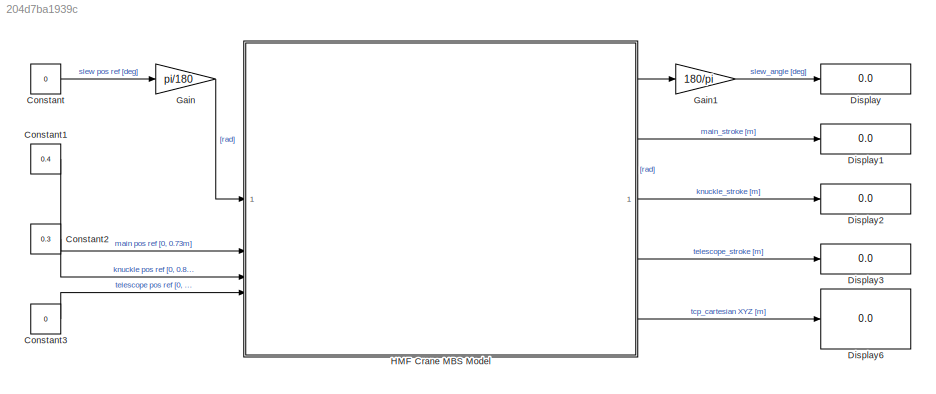
MODEL slx_204d7ba1939c
KIND model
CONFIG AbsTol = auto
CONFIG EnableMultiTasking = off
CONFIG FixedStep = 0.001
CONFIG MaxStep = 0.005
CONFIG MinStep = auto
CONFIG RelTol = 1e-3
CONFIG SampleTimeConstraint = Unconstrained
CONFIG SolverName = FixedStepAuto
CONFIG StartTime = 0.0
CONFIG StopTime = 1
BLOCK [Constant] Constant
  Value = 0
BLOCK [Constant] Constant1
  Value = 0.4
BLOCK [Constant] Constant2
  Value = 0.3
BLOCK [Constant] Constant3
  Value = 0
BLOCK [Display] Display
  Decimation = 1
BLOCK [Display] Display1
  Decimation = 1
BLOCK [Display] Display2
  Decimation = 1
BLOCK [Display] Display3
  Decimation = 1
BLOCK [Display] Display6
  Decimation = 1
BLOCK [Gain] Gain
  Gain = pi/180
BLOCK [Gain] Gain1
  Gain = 180/pi
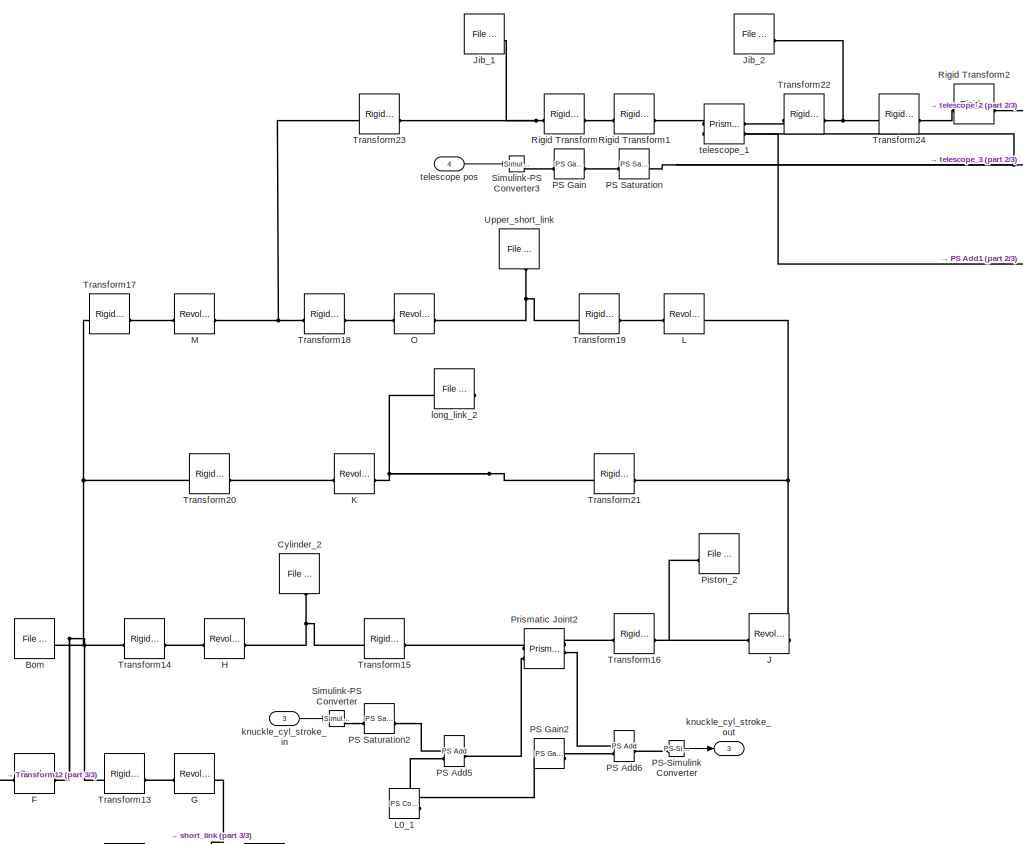
[diagram: HMF Crane MBS Model - part 1/3, central region]
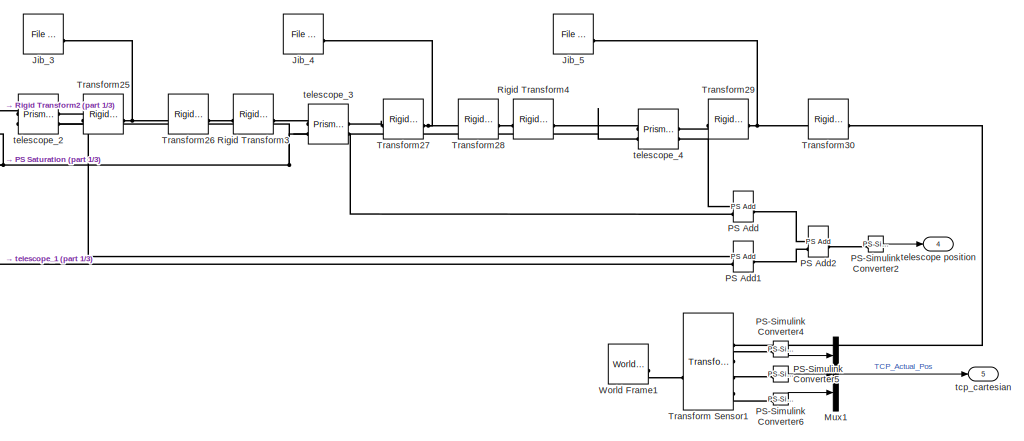
[diagram: HMF Crane MBS Model - part 2/3, top right region]
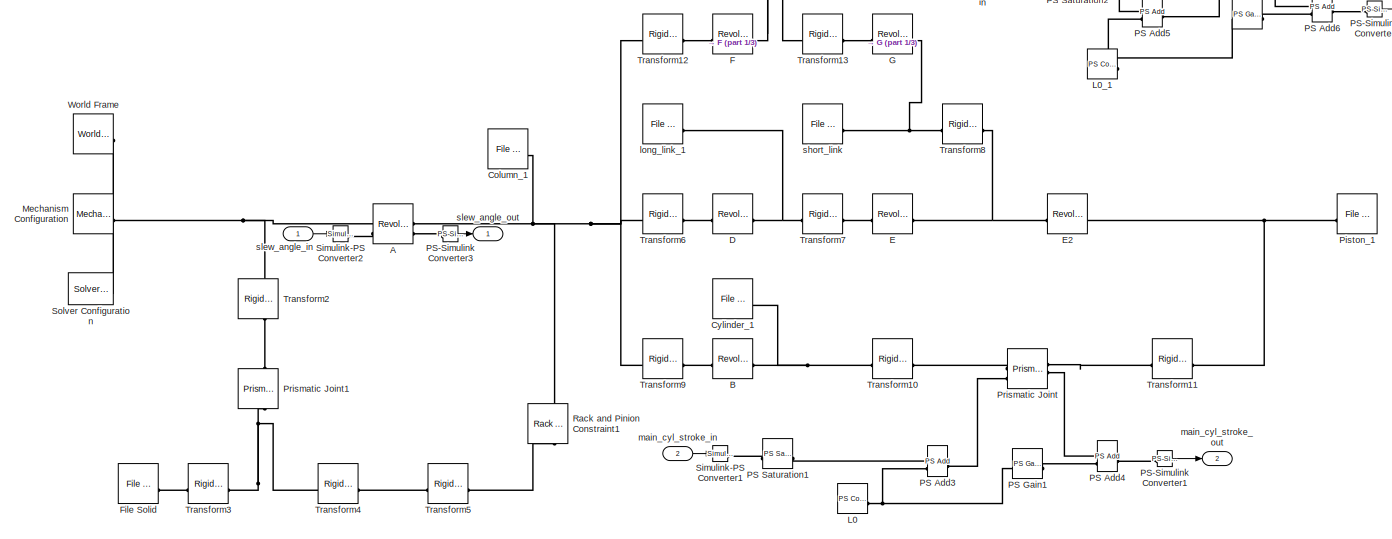
[diagram: HMF Crane MBS Model - part 3/3, bottom left region]
BLOCK [SubSystem] HMF Crane MBS Model
BLOCK [Reference] HMF Crane MBS Model/A  REF=sm_lib/Joints/Revolute Joint
  SourceBlock = sm_lib/Joints/Revolute Joint
  SourceType = Revolute Joint
BLOCK [Reference] HMF Crane MBS Model/B  REF=sm_lib/Joints/Revolute Joint
  SourceBlock = sm_lib/Joints/Revolute Joint
  SourceType = Revolute Joint
BLOCK [Reference] HMF Crane MBS Model/Bom  REF=sm_lib/Body Elements/File Solid
  SourceBlock = sm_lib/Body Elements/File Solid
  SourceType = File Solid
BLOCK [Reference] HMF Crane MBS Model/Column_1  REF=sm_lib/Body Elements/File Solid
  SourceBlock = sm_lib/Body Elements/File Solid
  SourceType = File Solid
BLOCK [Reference] HMF Crane MBS Model/Cylinder_1  REF=sm_lib/Body Elements/File Solid
  SourceBlock = sm_lib/Body Elements/File Solid
  SourceType = File Solid
BLOCK [Reference] HMF Crane MBS Model/Cylinder_2  REF=sm_lib/Body Elements/File Solid
  NameLocation = left
  SourceBlock = sm_lib/Body Elements/File Solid
  SourceType = File Solid
BLOCK [Reference] HMF Crane MBS Model/D  REF=sm_lib/Joints/Revolute Joint
  SourceBlock = sm_lib/Joints/Revolute Joint
  SourceType = Revolute Joint
BLOCK [Reference] HMF Crane MBS Model/E  REF=sm_lib/Joints/Revolute Joint
  SourceBlock = sm_lib/Joints/Revolute Joint
  SourceType = Revolute Joint
BLOCK [Reference] HMF Crane MBS Model/E2  REF=sm_lib/Joints/Revolute Joint
  SourceBlock = sm_lib/Joints/Revolute Joint
  SourceType = Revolute Joint
BLOCK [Reference] HMF Crane MBS Model/F  REF=sm_lib/Joints/Revolute Joint
  SourceBlock = sm_lib/Joints/Revolute Joint
  SourceType = Revolute Joint
BLOCK [Reference] HMF Crane MBS Model/File Solid  REF=sm_lib/Body Elements/File Solid
  SourceBlock = sm_lib/Body Elements/File Solid
  SourceType = File Solid
BLOCK [Reference] HMF Crane MBS Model/G  REF=sm_lib/Joints/Revolute Joint
  SourceBlock = sm_lib/Joints/Revolute Joint
  SourceType = Revolute Joint
BLOCK [Reference] HMF Crane MBS Model/H  REF=sm_lib/Joints/Revolute Joint
  SourceBlock = sm_lib/Joints/Revolute Joint
  SourceType = Revolute Joint
BLOCK [Reference] HMF Crane MBS Model/J  REF=sm_lib/Joints/Revolute Joint
  SourceBlock = sm_lib/Joints/Revolute Joint
  SourceType = Revolute Joint
BLOCK [Reference] HMF Crane MBS Model/Jib_1  REF=sm_lib/Body Elements/File Solid
  SourceBlock = sm_lib/Body Elements/File Solid
  SourceType = File Solid
BLOCK [Reference] HMF Crane MBS Model/Jib_2  REF=sm_lib/Body Elements/File Solid
  SourceBlock = sm_lib/Body Elements/File Solid
  SourceType = File Solid
BLOCK [Reference] HMF Crane MBS Model/Jib_3  REF=sm_lib/Body Elements/File Solid
  SourceBlock = sm_lib/Body Elements/File Solid
  SourceType = File Solid
BLOCK [Reference] HMF Crane MBS Model/Jib_4  REF=sm_lib/Body Elements/File Solid
  SourceBlock = sm_lib/Body Elements/File Solid
  SourceType = File Solid
BLOCK [Reference] HMF Crane MBS Model/Jib_5  REF=sm_lib/Body Elements/File Solid
  SourceBlock = sm_lib/Body Elements/File Solid
  SourceType = File Solid
BLOCK [Reference] HMF Crane MBS Model/K  REF=sm_lib/Joints/Revolute Joint
  SourceBlock = sm_lib/Joints/Revolute Joint
  SourceType = Revolute Joint
BLOCK [Reference] HMF Crane MBS Model/L  REF=sm_lib/Joints/Revolute Joint
  SourceBlock = sm_lib/Joints/Revolute Joint
  SourceType = Revolute Joint
BLOCK [Reference] HMF Crane MBS Model/L0  REF=fl_lib/Physical Signals/Sources/PS Constant
  SourceBlock = fl_lib/Physical Signals/Sources/PS Constant
  SourceType = PS Constant
BLOCK [Reference] HMF Crane MBS Model/L0_1  REF=fl_lib/Physical Signals/Sources/PS Constant
  SourceBlock = fl_lib/Physical Signals/Sources/PS Constant
  SourceType = PS Constant
BLOCK [Reference] HMF Crane MBS Model/M  REF=sm_lib/Joints/Revolute Joint
  SourceBlock = sm_lib/Joints/Revolute Joint
  SourceType = Revolute Joint
BLOCK [Reference] HMF Crane MBS Model/Mechanism Configuration  REF=sm_lib/Utilities/Mechanism
Configuration
  SourceBlock = sm_lib/Utilities/Mechanism\nConfiguration
  SourceType = Mechanism\nConfiguration
BLOCK [Mux] HMF Crane MBS Model/Mux1
  DisplayOption = bar
  Inputs = 3
BLOCK [Reference] HMF Crane MBS Model/O  REF=sm_lib/Joints/Revolute Joint
  SourceBlock = sm_lib/Joints/Revolute Joint
  SourceType = Revolute Joint
BLOCK [Reference] HMF Crane MBS Model/PS Add  REF=fl_lib/Physical Signals/Functions/PS Add
  SourceBlock = fl_lib/Physical Signals/Functions/PS Add
  SourceType = PS Add
BLOCK [Reference] HMF Crane MBS Model/PS Add1  REF=fl_lib/Physical Signals/Functions/PS Add
  SourceBlock = fl_lib/Physical Signals/Functions/PS Add
  SourceType = PS Add
BLOCK [Reference] HMF Crane MBS Model/PS Add2  REF=fl_lib/Physical Signals/Functions/PS Add
  SourceBlock = fl_lib/Physical Signals/Functions/PS Add
  SourceType = PS Add
BLOCK [Reference] HMF Crane MBS Model/PS Add3  REF=fl_lib/Physical Signals/Functions/PS Add
  SourceBlock = fl_lib/Physical Signals/Functions/PS Add
  SourceType = PS Add
BLOCK [Reference] HMF Crane MBS Model/PS Add4  REF=fl_lib/Physical Signals/Functions/PS Add
  SourceBlock = fl_lib/Physical Signals/Functions/PS Add
  SourceType = PS Add
BLOCK [Reference] HMF Crane MBS Model/PS Add5  REF=fl_lib/Physical Signals/Functions/PS Add
  SourceBlock = fl_lib/Physical Signals/Functions/PS Add
  SourceType = PS Add
BLOCK [Reference] HMF Crane MBS Model/PS Add6  REF=fl_lib/Physical Signals/Functions/PS Add
  SourceBlock = fl_lib/Physical Signals/Functions/PS Add
  SourceType = PS Add
BLOCK [Reference] HMF Crane MBS Model/PS Gain  REF=fl_lib/Physical Signals/Functions/PS Gain
  SourceBlock = fl_lib/Physical Signals/Functions/PS Gain
  SourceType = PS Gain
BLOCK [Reference] HMF Crane MBS Model/PS Gain1  REF=fl_lib/Physical Signals/Functions/PS Gain
  SourceBlock = fl_lib/Physical Signals/Functions/PS Gain
  SourceType = PS Gain
BLOCK [Reference] HMF Crane MBS Model/PS Gain2  REF=fl_lib/Physical Signals/Functions/PS Gain
  SourceBlock = fl_lib/Physical Signals/Functions/PS Gain
  SourceType = PS Gain
BLOCK [Reference] HMF Crane MBS Model/PS Saturation  REF=fl_lib/Physical Signals/Nonlinear Operators/PS Saturation
  SourceBlock = fl_lib/Physical Signals/Nonlinear Operators/PS Saturation
  SourceType = PS Saturation
BLOCK [Reference] HMF Crane MBS Model/PS Saturation1  REF=fl_lib/Physical Signals/Nonlinear Operators/PS Saturation
  SourceBlock = fl_lib/Physical Signals/Nonlinear Operators/PS Saturation
  SourceType = PS Saturation
BLOCK [Reference] HMF Crane MBS Model/PS Saturation2  REF=fl_lib/Physical Signals/Nonlinear Operators/PS Saturation
  SourceBlock = fl_lib/Physical Signals/Nonlinear Operators/PS Saturation
  SourceType = PS Saturation
BLOCK [Reference] HMF Crane MBS Model/PS-Simulink Converter  REF=nesl_utility/PS-Simulink
Converter
  SourceBlock = nesl_utility/PS-Simulink\nConverter
  SourceType = PS-Simulink\nConverter
BLOCK [Reference] HMF Crane MBS Model/PS-Simulink Converter1  REF=nesl_utility/PS-Simulink
Converter
  SourceBlock = nesl_utility/PS-Simulink\nConverter
  SourceType = PS-Simulink\nConverter
BLOCK [Reference] HMF Crane MBS Model/PS-Simulink Converter2  REF=nesl_utility/PS-Simulink
Converter
  SourceBlock = nesl_utility/PS-Simulink\nConverter
  SourceType = PS-Simulink\nConverter
BLOCK [Reference] HMF Crane MBS Model/PS-Simulink Converter3  REF=nesl_utility/PS-Simulink
Converter
  SourceBlock = nesl_utility/PS-Simulink\nConverter
  SourceType = PS-Simulink\nConverter
BLOCK [Reference] HMF Crane MBS Model/PS-Simulink Converter4  REF=nesl_utility/PS-Simulink
Converter
  SourceBlock = nesl_utility/PS-Simulink\nConverter
  SourceType = PS-Simulink\nConverter
BLOCK [Reference] HMF Crane MBS Model/PS-Simulink Converter5  REF=nesl_utility/PS-Simulink
Converter
  SourceBlock = nesl_utility/PS-Simulink\nConverter
  SourceType = PS-Simulink\nConverter
BLOCK [Reference] HMF Crane MBS Model/PS-Simulink Converter6  REF=nesl_utility/PS-Simulink
Converter
  SourceBlock = nesl_utility/PS-Simulink\nConverter
  SourceType = PS-Simulink\nConverter
BLOCK [Reference] HMF Crane MBS Model/Piston_1  REF=sm_lib/Body Elements/File Solid
  SourceBlock = sm_lib/Body Elements/File Solid
  SourceType = File Solid
BLOCK [Reference] HMF Crane MBS Model/Piston_2  REF=sm_lib/Body Elements/File Solid
  SourceBlock = sm_lib/Body Elements/File Solid
  SourceType = File Solid
BLOCK [Reference] HMF Crane MBS Model/Prismatic Joint  REF=sm_lib/Joints/Prismatic
Joint
  SourceBlock = sm_lib/Joints/Prismatic\nJoint
  SourceType = Prismatic\nJoint
BLOCK [Reference] HMF Crane MBS Model/Prismatic Joint1  REF=sm_lib/Joints/Prismatic
Joint
  NameLocation = left
  SourceBlock = sm_lib/Joints/Prismatic\nJoint
  SourceType = Prismatic\nJoint
BLOCK [Reference] HMF Crane MBS Model/Prismatic Joint2  REF=sm_lib/Joints/Prismatic
Joint
  SourceBlock = sm_lib/Joints/Prismatic\nJoint
  SourceType = Prismatic\nJoint
BLOCK [Reference] HMF Crane MBS Model/Rack and Pinion Constraint1  REF=sm_lib/Gears and
Couplings/Gears/Rack and Pinion
Constraint
  NameLocation = left
  SourceBlock = sm_lib/Gears and\nCouplings/Gears/Rack and Pinion\nConstraint
  SourceType = Rack and Pinion\nConstraint
BLOCK [Reference] HMF Crane MBS Model/Rigid Transform  REF=sm_lib/Frames and
Transforms/Rigid
Transform
  SourceBlock = sm_lib/Frames and\nTransforms/Rigid\nTransform
  SourceType = Rigid\nTransform
BLOCK [Reference] HMF Crane MBS Model/Rigid Transform1  REF=sm_lib/Frames and
Transforms/Rigid
Transform
  SourceBlock = sm_lib/Frames and\nTransforms/Rigid\nTransform
  SourceType = Rigid\nTransform
BLOCK [Reference] HMF Crane MBS Model/Rigid Transform2  REF=sm_lib/Frames and
Transforms/Rigid
Transform
  SourceBlock = sm_lib/Frames and\nTransforms/Rigid\nTransform
  SourceType = Rigid\nTransform
BLOCK [Reference] HMF Crane MBS Model/Rigid Transform3  REF=sm_lib/Frames and
Transforms/Rigid
Transform
  SourceBlock = sm_lib/Frames and\nTransforms/Rigid\nTransform
  SourceType = Rigid\nTransform
BLOCK [Reference] HMF Crane MBS Model/Rigid Transform4  REF=sm_lib/Frames and
Transforms/Rigid
Transform
  SourceBlock = sm_lib/Frames and\nTransforms/Rigid\nTransform
  SourceType = Rigid\nTransform
BLOCK [Reference] HMF Crane MBS Model/Simulink-PS Converter  REF=nesl_utility/Simulink-PS
Converter
  SourceBlock = nesl_utility/Simulink-PS\nConverter
  SourceType = Simulink-PS\nConverter
BLOCK [Reference] HMF Crane MBS Model/Simulink-PS Converter1  REF=nesl_utility/Simulink-PS
Converter
  SourceBlock = nesl_utility/Simulink-PS\nConverter
  SourceType = Simulink-PS\nConverter
BLOCK [Reference] HMF Crane MBS Model/Simulink-PS Converter2  REF=nesl_utility/Simulink-PS
Converter
  SourceBlock = nesl_utility/Simulink-PS\nConverter
  SourceType = Simulink-PS\nConverter
BLOCK [Reference] HMF Crane MBS Model/Simulink-PS Converter3  REF=nesl_utility/Simulink-PS
Converter
  SourceBlock = nesl_utility/Simulink-PS\nConverter
  SourceType = Simulink-PS\nConverter
BLOCK [Reference] HMF Crane MBS Model/Solver Configuration  REF=nesl_utility/Solver
Configuration
  SourceBlock = nesl_utility/Solver\nConfiguration
  SourceType = Solver\nConfiguration
BLOCK [Reference] HMF Crane MBS Model/Transform Sensor1  REF=sm_lib/Frames and
Transforms/Transform
Sensor
  SourceBlock = sm_lib/Frames and\nTransforms/Transform\nSensor
  SourceType = Transform\nSensor
BLOCK [Reference] HMF Crane MBS Model/Transform10  REF=sm_lib/Frames and
Transforms/Rigid
Transform
  SourceBlock = sm_lib/Frames and\nTransforms/Rigid\nTransform
  SourceType = Rigid\nTransform
BLOCK [Reference] HMF Crane MBS Model/Transform11  REF=sm_lib/Frames and
Transforms/Rigid
Transform
  SourceBlock = sm_lib/Frames and\nTransforms/Rigid\nTransform
  SourceType = Rigid\nTransform
BLOCK [Reference] HMF Crane MBS Model/Transform12  REF=sm_lib/Frames and
Transforms/Rigid
Transform
  SourceBlock = sm_lib/Frames and\nTransforms/Rigid\nTransform
  SourceType = Rigid\nTransform
BLOCK [Reference] HMF Crane MBS Model/Transform13  REF=sm_lib/Frames and
Transforms/Rigid
Transform
  SourceBlock = sm_lib/Frames and\nTransforms/Rigid\nTransform
  SourceType = Rigid\nTransform
BLOCK [Reference] HMF Crane MBS Model/Transform14  REF=sm_lib/Frames and
Transforms/Rigid
Transform
  SourceBlock = sm_lib/Frames and\nTransforms/Rigid\nTransform
  SourceType = Rigid\nTransform
BLOCK [Reference] HMF Crane MBS Model/Transform15  REF=sm_lib/Frames and
Transforms/Rigid
Transform
  SourceBlock = sm_lib/Frames and\nTransforms/Rigid\nTransform
  SourceType = Rigid\nTransform
BLOCK [Reference] HMF Crane MBS Model/Transform16  REF=sm_lib/Frames and
Transforms/Rigid
Transform
  NameLocation = top
  SourceBlock = sm_lib/Frames and\nTransforms/Rigid\nTransform
  SourceType = Rigid\nTransform
BLOCK [Reference] HMF Crane MBS Model/Transform17  REF=sm_lib/Frames and
Transforms/Rigid
Transform
  SourceBlock = sm_lib/Frames and\nTransforms/Rigid\nTransform
  SourceType = Rigid\nTransform
BLOCK [Reference] HMF Crane MBS Model/Transform18  REF=sm_lib/Frames and
Transforms/Rigid
Transform
  SourceBlock = sm_lib/Frames and\nTransforms/Rigid\nTransform
  SourceType = Rigid\nTransform
BLOCK [Reference] HMF Crane MBS Model/Transform19  REF=sm_lib/Frames and
Transforms/Rigid
Transform
  SourceBlock = sm_lib/Frames and\nTransforms/Rigid\nTransform
  SourceType = Rigid\nTransform
BLOCK [Reference] HMF Crane MBS Model/Transform2  REF=sm_lib/Frames and
Transforms/Rigid
Transform
  NameLocation = left
  SourceBlock = sm_lib/Frames and\nTransforms/Rigid\nTransform
  SourceType = Rigid\nTransform
BLOCK [Reference] HMF Crane MBS Model/Transform20  REF=sm_lib/Frames and
Transforms/Rigid
Transform
  SourceBlock = sm_lib/Frames and\nTransforms/Rigid\nTransform
  SourceType = Rigid\nTransform
BLOCK [Reference] HMF Crane MBS Model/Transform21  REF=sm_lib/Frames and
Transforms/Rigid
Transform
  SourceBlock = sm_lib/Frames and\nTransforms/Rigid\nTransform
  SourceType = Rigid\nTransform
BLOCK [Reference] HMF Crane MBS Model/Transform22  REF=sm_lib/Frames and
Transforms/Rigid
Transform
  SourceBlock = sm_lib/Frames and\nTransforms/Rigid\nTransform
  SourceType = Rigid\nTransform
BLOCK [Reference] HMF Crane MBS Model/Transform23  REF=sm_lib/Frames and
Transforms/Rigid
Transform
  SourceBlock = sm_lib/Frames and\nTransforms/Rigid\nTransform
  SourceType = Rigid\nTransform
BLOCK [Reference] HMF Crane MBS Model/Transform24  REF=sm_lib/Frames and
Transforms/Rigid
Transform
  SourceBlock = sm_lib/Frames and\nTransforms/Rigid\nTransform
  SourceType = Rigid\nTransform
BLOCK [Reference] HMF Crane MBS Model/Transform25  REF=sm_lib/Frames and
Transforms/Rigid
Transform
  SourceBlock = sm_lib/Frames and\nTransforms/Rigid\nTransform
  SourceType = Rigid\nTransform
BLOCK [Reference] HMF Crane MBS Model/Transform26  REF=sm_lib/Frames and
Transforms/Rigid
Transform
  SourceBlock = sm_lib/Frames and\nTransforms/Rigid\nTransform
  SourceType = Rigid\nTransform
BLOCK [Reference] HMF Crane MBS Model/Transform27  REF=sm_lib/Frames and
Transforms/Rigid
Transform
  SourceBlock = sm_lib/Frames and\nTransforms/Rigid\nTransform
  SourceType = Rigid\nTransform
BLOCK [Reference] HMF Crane MBS Model/Transform28  REF=sm_lib/Frames and
Transforms/Rigid
Transform
  SourceBlock = sm_lib/Frames and\nTransforms/Rigid\nTransform
  SourceType = Rigid\nTransform
BLOCK [Reference] HMF Crane MBS Model/Transform29  REF=sm_lib/Frames and
Transforms/Rigid
Transform
  SourceBlock = sm_lib/Frames and\nTransforms/Rigid\nTransform
  SourceType = Rigid\nTransform
BLOCK [Reference] HMF Crane MBS Model/Transform3  REF=sm_lib/Frames and
Transforms/Rigid
Transform
  SourceBlock = sm_lib/Frames and\nTransforms/Rigid\nTransform
  SourceType = Rigid\nTransform
BLOCK [Reference] HMF Crane MBS Model/Transform30  REF=sm_lib/Frames and
Transforms/Rigid
Transform
  SourceBlock = sm_lib/Frames and\nTransforms/Rigid\nTransform
  SourceType = Rigid\nTransform
BLOCK [Reference] HMF Crane MBS Model/Transform4  REF=sm_lib/Frames and
Transforms/Rigid
Transform
  SourceBlock = sm_lib/Frames and\nTransforms/Rigid\nTransform
  SourceType = Rigid\nTransform
BLOCK [Reference] HMF Crane MBS Model/Transform5  REF=sm_lib/Frames and
Transforms/Rigid
Transform
  SourceBlock = sm_lib/Frames and\nTransforms/Rigid\nTransform
  SourceType = Rigid\nTransform
BLOCK [Reference] HMF Crane MBS Model/Transform6  REF=sm_lib/Frames and
Transforms/Rigid
Transform
  SourceBlock = sm_lib/Frames and\nTransforms/Rigid\nTransform
  SourceType = Rigid\nTransform
BLOCK [Reference] HMF Crane MBS Model/Transform7  REF=sm_lib/Frames and
Transforms/Rigid
Transform
  SourceBlock = sm_lib/Frames and\nTransforms/Rigid\nTransform
  SourceType = Rigid\nTransform
BLOCK [Reference] HMF Crane MBS Model/Transform8  REF=sm_lib/Frames and
Transforms/Rigid
Transform
  SourceBlock = sm_lib/Frames and\nTransforms/Rigid\nTransform
  SourceType = Rigid\nTransform
BLOCK [Reference] HMF Crane MBS Model/Transform9  REF=sm_lib/Frames and
Transforms/Rigid
Transform
  SourceBlock = sm_lib/Frames and\nTransforms/Rigid\nTransform
  SourceType = Rigid\nTransform
BLOCK [Reference] HMF Crane MBS Model/Upper_short_link  REF=sm_lib/Body Elements/File Solid
  NameLocation = left
  SourceBlock = sm_lib/Body Elements/File Solid
  SourceType = File Solid
BLOCK [Reference] HMF Crane MBS Model/World Frame  REF=sm_lib/Frames and
Transforms/World Frame
  SourceBlock = sm_lib/Frames and\nTransforms/World Frame
  SourceType = World Frame
BLOCK [Reference] HMF Crane MBS Model/World Frame1  REF=sm_lib/Frames and
Transforms/World Frame
  SourceBlock = sm_lib/Frames and\nTransforms/World Frame
  SourceType = World Frame
BLOCK [Inport] HMF Crane MBS Model/knuckle_cyl_stroke_in
  Port = 3
BLOCK [Outport] HMF Crane MBS Model/knuckle_cyl_stroke_out
  Port = 3
BLOCK [Reference] HMF Crane MBS Model/long_link_1  REF=sm_lib/Body Elements/File Solid
  SourceBlock = sm_lib/Body Elements/File Solid
  SourceType = File Solid
BLOCK [Reference] HMF Crane MBS Model/long_link_2  REF=sm_lib/Body Elements/File Solid
  SourceBlock = sm_lib/Body Elements/File Solid
  SourceType = File Solid
BLOCK [Inport] HMF Crane MBS Model/main_cyl_stroke_in 
  Port = 2
BLOCK [Outport] HMF Crane MBS Model/main_cyl_stroke_out
  Port = 2
BLOCK [Reference] HMF Crane MBS Model/short_link  REF=sm_lib/Body Elements/File Solid
  SourceBlock = sm_lib/Body Elements/File Solid
  SourceType = File Solid
BLOCK [Inport] HMF Crane MBS Model/slew_angle_in
BLOCK [Outport] HMF Crane MBS Model/slew_angle_out
BLOCK [Outport] HMF Crane MBS Model/tcp_cartesian
  Port = 5
BLOCK [Inport] HMF Crane MBS Model/telescope pos
  Port = 4
BLOCK [Outport] HMF Crane MBS Model/telescope position
  Port = 4
BLOCK [Reference] HMF Crane MBS Model/telescope_1  REF=sm_lib/Joints/Prismatic
Joint
  SourceBlock = sm_lib/Joints/Prismatic\nJoint
  SourceType = Prismatic\nJoint
BLOCK [Reference] HMF Crane MBS Model/telescope_2  REF=sm_lib/Joints/Prismatic
Joint
  SourceBlock = sm_lib/Joints/Prismatic\nJoint
  SourceType = Prismatic\nJoint
BLOCK [Reference] HMF Crane MBS Model/telescope_3  REF=sm_lib/Joints/Prismatic
Joint
  SourceBlock = sm_lib/Joints/Prismatic\nJoint
  SourceType = Prismatic\nJoint
BLOCK [Reference] HMF Crane MBS Model/telescope_4  REF=sm_lib/Joints/Prismatic
Joint
  SourceBlock = sm_lib/Joints/Prismatic\nJoint
  SourceType = Prismatic\nJoint
LINE Constant1:1 -> HMF Crane MBS Model:2
LINE Constant2:1 -> HMF Crane MBS Model:3
LINE Constant3:1 -> HMF Crane MBS Model:4
LINE Constant:1 -> Gain:1
LINE Gain1:1 -> Display:1
LINE Gain:1 -> HMF Crane MBS Model:1
LINE HMF Crane MBS Model/Mux1:1 -> HMF Crane MBS Model/tcp_cartesian:1
LINE HMF Crane MBS Model/PS-Simulink Converter1:1 -> HMF Crane MBS Model/main_cyl_stroke_out:1
LINE HMF Crane MBS Model/PS-Simulink Converter2:1 -> HMF Crane MBS Model/telescope position:1
LINE HMF Crane MBS Model/PS-Simulink Converter3:1 -> HMF Crane MBS Model/slew_angle_out:1
LINE HMF Crane MBS Model/PS-Simulink Converter4:1 -> HMF Crane MBS Model/Mux1:1
LINE HMF Crane MBS Model/PS-Simulink Converter5:1 -> HMF Crane MBS Model/Mux1:2
LINE HMF Crane MBS Model/PS-Simulink Converter6:1 -> HMF Crane MBS Model/Mux1:3
LINE HMF Crane MBS Model/PS-Simulink Converter:1 -> HMF Crane MBS Model/knuckle_cyl_stroke_out:1
LINE HMF Crane MBS Model/knuckle_cyl_stroke_in:1 -> HMF Crane MBS Model/Simulink-PS Converter:1
LINE HMF Crane MBS Model/main_cyl_stroke_in :1 -> HMF Crane MBS Model/Simulink-PS Converter1:1
LINE HMF Crane MBS Model/slew_angle_in:1 -> HMF Crane MBS Model/Simulink-PS Converter2:1
LINE HMF Crane MBS Model/telescope pos:1 -> HMF Crane MBS Model/Simulink-PS Converter3:1
LINE HMF Crane MBS Model:1 -> Gain1:1
LINE HMF Crane MBS Model:2 -> Display1:1
LINE HMF Crane MBS Model:3 -> Display2:1
LINE HMF Crane MBS Model:4 -> Display3:1
LINE HMF Crane MBS Model:5 -> Display6:1
PNET net1: HMF Crane MBS Model/A:LConn1 -- HMF Crane MBS Model/Mechanism Configuration:RConn1 -- HMF Crane MBS Model/Solver Configuration:RConn1 -- HMF Crane MBS Model/Transform2:LConn1 -- HMF Crane MBS Model/World Frame:RConn1
PLINE HMF Crane MBS Model/A:LConn2 -- HMF Crane MBS Model/Simulink-PS Converter2:RConn1
PNET net2: HMF Crane MBS Model/A:RConn1 -- HMF Crane MBS Model/Column_1:RConn1 -- HMF Crane MBS Model/Rack and Pinion Constraint1:LConn1 -- HMF Crane MBS Model/Transform12:LConn1 -- HMF Crane MBS Model/Transform6:LConn1 -- HMF Crane MBS Model/Transform9:LConn1
PLINE HMF Crane MBS Model/A:RConn2 -- HMF Crane MBS Model/PS-Simulink Converter3:LConn1
PLINE HMF Crane MBS Model/B:LConn1 -- HMF Crane MBS Model/Transform9:RConn1
PNET net3: HMF Crane MBS Model/B:RConn1 -- HMF Crane MBS Model/Cylinder_1:RConn1 -- HMF Crane MBS Model/Transform10:LConn1
PNET net4: HMF Crane MBS Model/Bom:RConn1 -- HMF Crane MBS Model/F:RConn1 -- HMF Crane MBS Model/Transform13:LConn1 -- HMF Crane MBS Model/Transform14:LConn1 -- HMF Crane MBS Model/Transform17:LConn1 -- HMF Crane MBS Model/Transform20:LConn1
PNET net5: HMF Crane MBS Model/Cylinder_2:RConn1 -- HMF Crane MBS Model/H:RConn1 -- HMF Crane MBS Model/Transform15:LConn1
PLINE HMF Crane MBS Model/D:LConn1 -- HMF Crane MBS Model/Transform6:RConn1
PNET net6: HMF Crane MBS Model/D:RConn1 -- HMF Crane MBS Model/Transform7:LConn1 -- HMF Crane MBS Model/long_link_1:RConn1
PNET net7: HMF Crane MBS Model/E2:LConn1 -- HMF Crane MBS Model/E:RConn1 -- HMF Crane MBS Model/Transform8:RConn1
PNET net8: HMF Crane MBS Model/E2:RConn1 -- HMF Crane MBS Model/Piston_1:RConn1 -- HMF Crane MBS Model/Transform11:LConn1
PLINE HMF Crane MBS Model/E:LConn1 -- HMF Crane MBS Model/Transform7:RConn1
PLINE HMF Crane MBS Model/F:LConn1 -- HMF Crane MBS Model/Transform12:RConn1
PLINE HMF Crane MBS Model/File Solid:RConn1 -- HMF Crane MBS Model/Transform3:LConn1
PLINE HMF Crane MBS Model/G:LConn1 -- HMF Crane MBS Model/Transform13:RConn1
PNET net9: HMF Crane MBS Model/G:RConn1 -- HMF Crane MBS Model/Transform8:LConn1 -- HMF Crane MBS Model/short_link:RConn1
PLINE HMF Crane MBS Model/H:LConn1 -- HMF Crane MBS Model/Transform14:RConn1
PNET net10: HMF Crane MBS Model/J:LConn1 -- HMF Crane MBS Model/Piston_2:RConn1 -- HMF Crane MBS Model/Transform16:LConn1
PNET net11: HMF Crane MBS Model/J:RConn1 -- HMF Crane MBS Model/L:RConn1 -- HMF Crane MBS Model/Transform21:RConn1
PNET net12: HMF Crane MBS Model/Jib_1:RConn1 -- HMF Crane MBS Model/Rigid Transform:LConn1 -- HMF Crane MBS Model/Transform23:RConn1
PNET net13: HMF Crane MBS Model/Jib_2:RConn1 -- HMF Crane MBS Model/Transform22:RConn1 -- HMF Crane MBS Model/Transform24:LConn1
PNET net14: HMF Crane MBS Model/Jib_3:RConn1 -- HMF Crane MBS Model/Transform25:RConn1 -- HMF Crane MBS Model/Transform26:LConn1
PNET net15: HMF Crane MBS Model/Jib_4:RConn1 -- HMF Crane MBS Model/Transform27:RConn1 -- HMF Crane MBS Model/Transform28:LConn1
PNET net16: HMF Crane MBS Model/Jib_5:RConn1 -- HMF Crane MBS Model/Transform29:RConn1 -- HMF Crane MBS Model/Transform30:LConn1
PLINE HMF Crane MBS Model/K:LConn1 -- HMF Crane MBS Model/Transform20:RConn1
PNET net17: HMF Crane MBS Model/K:RConn1 -- HMF Crane MBS Model/Transform21:LConn1 -- HMF Crane MBS Model/long_link_2:RConn1
PNET net18: HMF Crane MBS Model/L0:RConn1 -- HMF Crane MBS Model/PS Add3:LConn2 -- HMF Crane MBS Model/PS Gain1:LConn1
PNET net19: HMF Crane MBS Model/L0_1:RConn1 -- HMF Crane MBS Model/PS Add5:LConn2 -- HMF Crane MBS Model/PS Gain2:LConn1
PLINE HMF Crane MBS Model/L:LConn1 -- HMF Crane MBS Model/Transform19:RConn1
PLINE HMF Crane MBS Model/M:LConn1 -- HMF Crane MBS Model/Transform17:RConn1
PNET net20: HMF Crane MBS Model/M:RConn1 -- HMF Crane MBS Model/Transform18:LConn1 -- HMF Crane MBS Model/Transform23:LConn1
PLINE HMF Crane MBS Model/O:LConn1 -- HMF Crane MBS Model/Transform18:RConn1
PNET net21: HMF Crane MBS Model/O:RConn1 -- HMF Crane MBS Model/Transform19:LConn1 -- HMF Crane MBS Model/Upper_short_link:RConn1
PLINE HMF Crane MBS Model/PS Add1:LConn1 -- HMF Crane MBS Model/telescope_2:RConn2
PLINE HMF Crane MBS Model/PS Add1:LConn2 -- HMF Crane MBS Model/telescope_1:RConn2
PLINE HMF Crane MBS Model/PS Add1:RConn1 -- HMF Crane MBS Model/PS Add2:LConn2
PLINE HMF Crane MBS Model/PS Add2:LConn1 -- HMF Crane MBS Model/PS Add:RConn1
PLINE HMF Crane MBS Model/PS Add2:RConn1 -- HMF Crane MBS Model/PS-Simulink Converter2:LConn1
PLINE HMF Crane MBS Model/PS Add3:LConn1 -- HMF Crane MBS Model/PS Saturation1:RConn1
PLINE HMF Crane MBS Model/PS Add3:RConn1 -- HMF Crane MBS Model/Prismatic Joint:LConn2
PLINE HMF Crane MBS Model/PS Add4:LConn1 -- HMF Crane MBS Model/Prismatic Joint:RConn2
PLINE HMF Crane MBS Model/PS Add4:LConn2 -- HMF Crane MBS Model/PS Gain1:RConn1
PLINE HMF Crane MBS Model/PS Add4:RConn1 -- HMF Crane MBS Model/PS-Simulink Converter1:LConn1
PLINE HMF Crane MBS Model/PS Add5:LConn1 -- HMF Crane MBS Model/PS Saturation2:RConn1
PLINE HMF Crane MBS Model/PS Add5:RConn1 -- HMF Crane MBS Model/Prismatic Joint2:LConn2
PLINE HMF Crane MBS Model/PS Add6:LConn1 -- HMF Crane MBS Model/Prismatic Joint2:RConn2
PLINE HMF Crane MBS Model/PS Add6:LConn2 -- HMF Crane MBS Model/PS Gain2:RConn1
PLINE HMF Crane MBS Model/PS Add6:RConn1 -- HMF Crane MBS Model/PS-Simulink Converter:LConn1
PLINE HMF Crane MBS Model/PS Add:LConn1 -- HMF Crane MBS Model/telescope_4:RConn2
PLINE HMF Crane MBS Model/PS Add:LConn2 -- HMF Crane MBS Model/telescope_3:RConn2
PLINE HMF Crane MBS Model/PS Gain:LConn1 -- HMF Crane MBS Model/Simulink-PS Converter3:RConn1
PLINE HMF Crane MBS Model/PS Gain:RConn1 -- HMF Crane MBS Model/PS Saturation:LConn1
PLINE HMF Crane MBS Model/PS Saturation1:LConn1 -- HMF Crane MBS Model/Simulink-PS Converter1:RConn1
PLINE HMF Crane MBS Model/PS Saturation2:LConn1 -- HMF Crane MBS Model/Simulink-PS Converter:RConn1
PNET net22: HMF Crane MBS Model/PS Saturation:RConn1 -- HMF Crane MBS Model/telescope_1:LConn2 -- HMF Crane MBS Model/telescope_2:LConn2 -- HMF Crane MBS Model/telescope_3:LConn2 -- HMF Crane MBS Model/telescope_4:LConn2
PLINE HMF Crane MBS Model/PS-Simulink Converter4:LConn1 -- HMF Crane MBS Model/Transform Sensor1:RConn2
PLINE HMF Crane MBS Model/PS-Simulink Converter5:LConn1 -- HMF Crane MBS Model/Transform Sensor1:RConn3
PLINE HMF Crane MBS Model/PS-Simulink Converter6:LConn1 -- HMF Crane MBS Model/Transform Sensor1:RConn4
PLINE HMF Crane MBS Model/Prismatic Joint1:LConn1 -- HMF Crane MBS Model/Transform2:RConn1
PNET net23: HMF Crane MBS Model/Prismatic Joint1:RConn1 -- HMF Crane MBS Model/Transform3:RConn1 -- HMF Crane MBS Model/Transform4:LConn1
PLINE HMF Crane MBS Model/Prismatic Joint2:LConn1 -- HMF Crane MBS Model/Transform15:RConn1
PLINE HMF Crane MBS Model/Prismatic Joint2:RConn1 -- HMF Crane MBS Model/Transform16:RConn1
PLINE HMF Crane MBS Model/Prismatic Joint:LConn1 -- HMF Crane MBS Model/Transform10:RConn1
PLINE HMF Crane MBS Model/Prismatic Joint:RConn1 -- HMF Crane MBS Model/Transform11:RConn1
PLINE HMF Crane MBS Model/Rack and Pinion Constraint1:RConn1 -- HMF Crane MBS Model/Transform5:RConn1
PLINE HMF Crane MBS Model/Rigid Transform1:LConn1 -- HMF Crane MBS Model/Rigid Transform:RConn1
PLINE HMF Crane MBS Model/Rigid Transform1:RConn1 -- HMF Crane MBS Model/telescope_1:LConn1
PLINE HMF Crane MBS Model/Rigid Transform2:LConn1 -- HMF Crane MBS Model/Transform24:RConn1
PLINE HMF Crane MBS Model/Rigid Transform2:RConn1 -- HMF Crane MBS Model/telescope_2:LConn1
PLINE HMF Crane MBS Model/Rigid Transform3:LConn1 -- HMF Crane MBS Model/Transform26:RConn1
PLINE HMF Crane MBS Model/Rigid Transform3:RConn1 -- HMF Crane MBS Model/telescope_3:LConn1
PLINE HMF Crane MBS Model/Rigid Transform4:LConn1 -- HMF Crane MBS Model/Transform28:RConn1
PLINE HMF Crane MBS Model/Rigid Transform4:RConn1 -- HMF Crane MBS Model/telescope_4:LConn1
PLINE HMF Crane MBS Model/Transform Sensor1:LConn1 -- HMF Crane MBS Model/World Frame1:RConn1
PLINE HMF Crane MBS Model/Transform Sensor1:RConn1 -- HMF Crane MBS Model/Transform30:RConn1
PLINE HMF Crane MBS Model/Transform22:LConn1 -- HMF Crane MBS Model/telescope_1:RConn1
PLINE HMF Crane MBS Model/Transform25:LConn1 -- HMF Crane MBS Model/telescope_2:RConn1
PLINE HMF Crane MBS Model/Transform27:LConn1 -- HMF Crane MBS Model/telescope_3:RConn1
PLINE HMF Crane MBS Model/Transform29:LConn1 -- HMF Crane MBS Model/telescope_4:RConn1
PLINE HMF Crane MBS Model/Transform4:RConn1 -- HMF Crane MBS Model/Transform5:LConn1
note: PNET lines group multi-terminal physical nets as a canonical sorted terminal list (undirected conserving connections); 2-terminal nets keep the pairwise PLINE form
